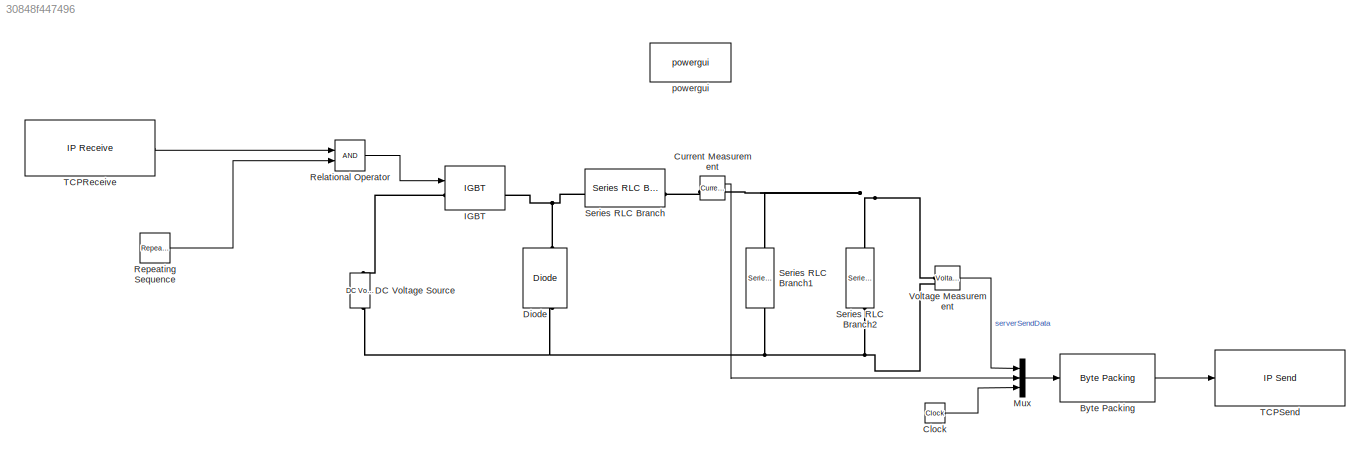
MODEL slx_30848f447496
KIND model
CONFIG AbsTol = auto
CONFIG EnableMultiTasking = off
CONFIG FixedStep = 5e-5
CONFIG InitFcn = Vs = 12;\nVref = 5;\nfs=5e3;\nL=1e-3;\nRL=0.015;\nC=1e-3;\nRC=0.017;\nRLoad = 1;
CONFIG MaxStep = auto
CONFIG MinStep = auto
CONFIG RelTol = 1e-3
CONFIG SampleTimeConstraint = Unconstrained
CONFIG SolverName = FixedStepDiscrete
CONFIG StartTime = 0.0
CONFIG StopTime = inf
BLOCK [Reference] Byte Packing  REF=slrealtimeutilitieslib/Byte Packing
  SourceBlock = slrealtimeutilitieslib/Byte Packing
  SourceType = slrealtimebytepacking
BLOCK [Clock] Clock
BLOCK [Reference] Current Measurement  REF=spsCurrentMeasurementLib/Current Measurement
  SourceBlock = spsCurrentMeasurementLib/Current Measurement
  SourceType = Current Measurement
  UserDataPersistent = on
BLOCK [Reference] DC Voltage Source  REF=spsDCVoltageSourceLib/DC Voltage Source
  SourceBlock = spsDCVoltageSourceLib/DC Voltage Source
  SourceType = DC Voltage Source
BLOCK [Reference] Diode  REF=spsDiodeLib/Diode
  NameLocation = right
  SourceBlock = spsDiodeLib/Diode
  SourceType = Diode
BLOCK [Reference] IGBT  REF=spsIGBTLib/IGBT
  SourceBlock = spsIGBTLib/IGBT
  SourceType = IGBT
BLOCK [Mux] Mux
  DisplayOption = bar
  Inputs = 3
BLOCK [RelationalOperator] Relational Operator
  InputSameDT = off
  OutDataTypeStr = boolean
  RndMeth = Simplest
BLOCK [Reference] Repeating Sequence  REF=simulink/Sources/Repeating
Sequence
  SourceBlock = simulink/Sources/Repeating\nSequence
  SourceType = Repeating table
BLOCK [Reference] Series RLC Branch  REF=spsSeriesRLCBranchLib/Series RLC Branch
  SourceBlock = spsSeriesRLCBranchLib/Series RLC Branch
  SourceType = Series RLC Branch
BLOCK [Reference] Series RLC Branch1  REF=spsSeriesRLCBranchLib/Series RLC Branch
  NameLocation = left
  SourceBlock = spsSeriesRLCBranchLib/Series RLC Branch
  SourceType = Series RLC Branch
BLOCK [Reference] Series RLC Branch2  REF=spsSeriesRLCBranchLib/Series RLC Branch
  NameLocation = left
  SourceBlock = spsSeriesRLCBranchLib/Series RLC Branch
  SourceType = Series RLC Branch
BLOCK [Reference] TCPReceive  REF=instrumentlib/TCP//IP Receive
  SourceBlock = instrumentlib/TCP//IP Receive
  SourceType = instrument.system.TCPIPReceive
BLOCK [Reference] TCPSend  REF=instrumentlib/TCP//IP Send
  SourceBlock = instrumentlib/TCP//IP Send
  SourceType = instrument.system.TCPIPSend
BLOCK [Reference] Voltage Measurement  REF=spsVoltageMeasurementLib/Voltage Measurement
  SourceBlock = spsVoltageMeasurementLib/Voltage Measurement
  SourceType = Voltage Measurement
  UserDataPersistent = on
BLOCK [Reference] powergui  REF=spspowerguiLib/powergui
  Priority = 1
  SourceBlock = spspowerguiLib/powergui
  SourceType = PSB option menu block
LINE Byte Packing:1 -> TCPSend:1
LINE Clock:1 -> Mux:3
LINE Current Measurement:1 -> Mux:2
LINE Mux:1 -> Byte Packing:1
LINE Relational Operator:1 -> IGBT:1
LINE Repeating Sequence:1 -> Relational Operator:2
LINE TCPReceive:1 -> Relational Operator:1
LINE Voltage Measurement:1 -> Mux:1
PLINE Current Measurement:LConn1 -- Series RLC Branch:RConn1
PNET net1: Current Measurement:RConn1 -- Series RLC Branch1:LConn1 -- Series RLC Branch2:LConn1 -- Voltage Measurement:LConn1
PNET net2: DC Voltage Source:LConn1 -- Diode:LConn1 -- Series RLC Branch1:RConn1 -- Series RLC Branch2:RConn1 -- Voltage Measurement:LConn2
PLINE DC Voltage Source:RConn1 -- IGBT:LConn1
PNET net3: Diode:RConn1 -- IGBT:RConn1 -- Series RLC Branch:LConn1
note: PNET lines group multi-terminal physical nets as a canonical sorted terminal list (undirected conserving connections); 2-terminal nets keep the pairwise PLINE form
